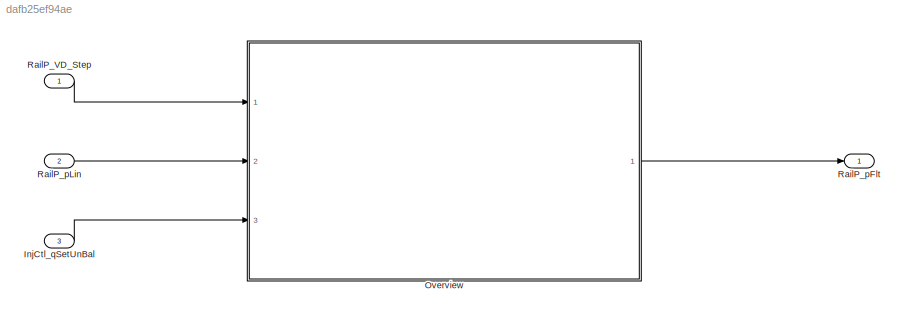
MODEL slx_dafb25ef94ae
KIND model
CONFIG AbsTol = auto
CONFIG EnableMultiTasking = off
CONFIG FixedStep = 0.001
CONFIG MaxStep = auto
CONFIG MinStep = auto
CONFIG RelTol = 1e-3
CONFIG SampleTimeConstraint = Unconstrained
CONFIG SolverName = FixedStepDiscrete
CONFIG StartTime = 0.0
CONFIG StopTime = Inf
BLOCK [Inport] InjCtl_qSetUnBal
  Description = Current injection quantity
  OutDataTypeStr = InjMass
  OutMax = 319
  OutMin = -319
  Port = 3
  PortDimensions = [1 1]
  Unit = mg/hub
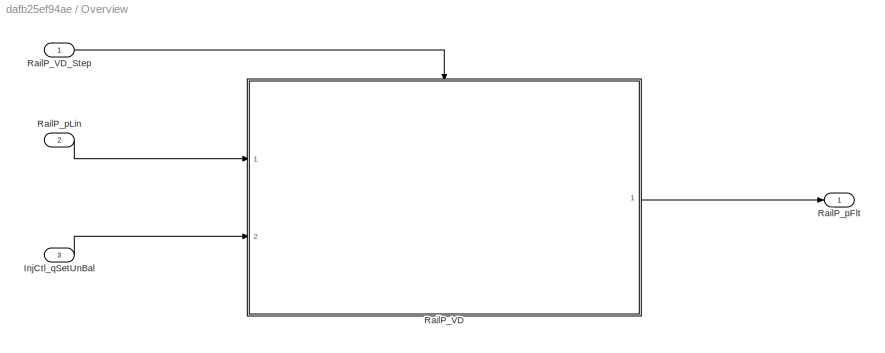
BLOCK [SubSystem] Overview
  Ports = [3, 1]
  RequestExecContextInheritance = off
BLOCK [Inport] Overview/InjCtl_qSetUnBal
  Port = 3
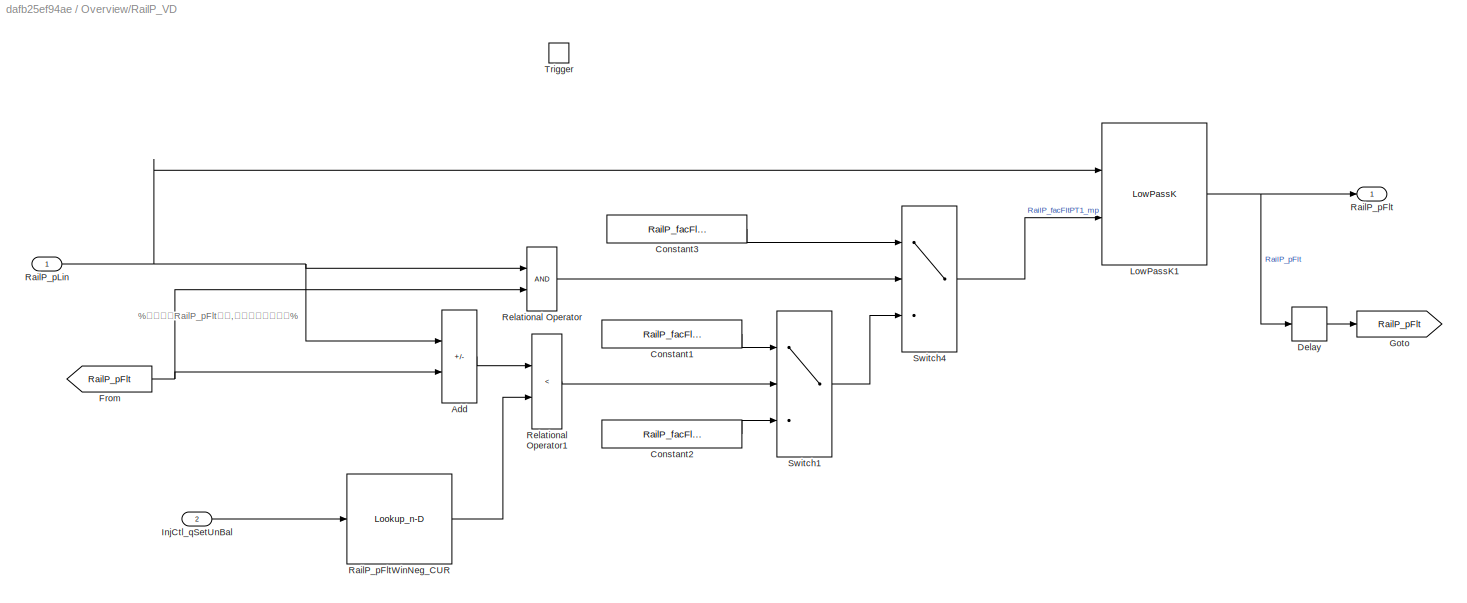
BLOCK [SubSystem] Overview/RailP_VD
  Ports = [2, 1, 0, 1]
  RequestExecContextInheritance = off
BLOCK [Sum] Overview/RailP_VD/Add
  IconShape = rectangular
  InputSameDT = on
  Inputs = -+
  OutDataTypeStr = Inherit: Inherit via back propagation
  Ports = [2, 1]
BLOCK [Constant] Overview/RailP_VD/Constant1
  Value = RailP_facFlt2PT1_C
BLOCK [Constant] Overview/RailP_VD/Constant2
  Value = RailP_facFlt3PT1_C
BLOCK [Constant] Overview/RailP_VD/Constant3
  Value = RailP_facFlt1PT1_C
BLOCK [Delay] Overview/RailP_VD/Delay
  DelayLength = 1
  InitialCondition = 0
  InputPortMap = u0
  Ports = [1, 1]
BLOCK [From] Overview/RailP_VD/From
  GotoTag = RailP_pFlt
BLOCK [Goto] Overview/RailP_VD/Goto
  GotoTag = RailP_pFlt
BLOCK [Inport] Overview/RailP_VD/InjCtl_qSetUnBal
  Port = 2
  Tag = mg/hub
BLOCK [Reference] Overview/RailP_VD/LowPassK1  REF=sllib/Transfer Functions/LowPassK  (lib defined in slx_2b0aa6d284ff)
  Ports = [2, 1]
  SourceBlock = sllib/Transfer Functions/LowPassK
  SourceProductName = sllib
  SourceType = LowPassK
BLOCK [Outport] Overview/RailP_VD/RailP_pFlt
  VectorParamsAs1DForOutWhenUnconnected = off
BLOCK [Lookup_n-D] Overview/RailP_VD/RailP_pFltWinNeg_CUR
  BeginIndexSearchUsingPreviousIndexResult = on
  BreakpointsForDimension1 = RailP_pFltWinNeg_CURX
  ExtrapMethod = Clip
  IndexSearchMethod = Linear search
  InputPortMap = u0
  InputSameDT = off
  InternalRulePriority = Speed
  NumberOfTableDimensions = 1
  OutDataTypeStr = Inherit: Inherit via back propagation
  Ports = [1, 1]
  SaturateOnIntegerOverflow = on
  Table = RailP_pFltWinNeg_CUR
  UseLastTableValue = on
  UseOneInputPortForAllInputData = on
BLOCK [Inport] Overview/RailP_VD/RailP_pLin
  Tag = bar
BLOCK [RelationalOperator] Overview/RailP_VD/Relational Operator
  OutDataTypeStr = boolean
  Ports = [2, 1]
BLOCK [RelationalOperator] Overview/RailP_VD/Relational Operator1
  Operator = <
  OutDataTypeStr = boolean
  Ports = [2, 1]
BLOCK [Switch] Overview/RailP_VD/Switch1
  Criteria = u2 ~= 0
  SaturateOnIntegerOverflow = off
BLOCK [Switch] Overview/RailP_VD/Switch4
  Criteria = u2 ~= 0
  SaturateOnIntegerOverflow = off
BLOCK [TriggerPort] Overview/RailP_VD/Trigger
  PortDimensions = 1
  Ports = []
  StatesWhenEnabling = held
  TriggerType = function-call
  VariantControl = Variant
BLOCK [Inport] Overview/RailP_VD_Step
BLOCK [Outport] Overview/RailP_pFlt
  VectorParamsAs1DForOutWhenUnconnected = off
BLOCK [Inport] Overview/RailP_pLin
  Port = 2
BLOCK [Inport] RailP_VD_Step
  OutputFunctionCall = on
BLOCK [Outport] RailP_pFlt
  Description = Maximum rail pressure of the last 10 sampling cycle
  OutDataTypeStr = Press_bar1
  OutMax = 2000
  OutMin = 0
  PortDimensions = [1 1]
  Unit = bar
BLOCK [Inport] RailP_pLin
  Description = Fuel pressure
  OutDataTypeStr = Press_bar1
  OutMax = 2000
  OutMin = 0
  Port = 2
  PortDimensions = [1 1]
  Unit = bar
ANNOTATION Overview/RailP_VD: %不能设置RailP_pFlt标签,会与延时前的冲突%
LINE InjCtl_qSetUnBal:1 -> Overview:3
LINE Overview/InjCtl_qSetUnBal:1 -> Overview/RailP_VD:2
LINE Overview/RailP_VD/Add:1 -> Overview/RailP_VD/Relational Operator1:1
LINE Overview/RailP_VD/Constant1:1 -> Overview/RailP_VD/Switch1:1
LINE Overview/RailP_VD/Constant2:1 -> Overview/RailP_VD/Switch1:3
LINE Overview/RailP_VD/Constant3:1 -> Overview/RailP_VD/Switch4:1
LINE Overview/RailP_VD/Delay:1 -> Overview/RailP_VD/Goto:1
NET Overview/RailP_VD/From:1 -> Overview/RailP_VD/Add:2, Overview/RailP_VD/Relational Operator:2
LINE Overview/RailP_VD/InjCtl_qSetUnBal:1 -> Overview/RailP_VD/RailP_pFltWinNeg_CUR:1
NET Overview/RailP_VD/LowPassK1:1 -> Overview/RailP_VD/Delay:1, Overview/RailP_VD/RailP_pFlt:1
LINE Overview/RailP_VD/RailP_pFltWinNeg_CUR:1 -> Overview/RailP_VD/Relational Operator1:2
NET Overview/RailP_VD/RailP_pLin:1 -> Overview/RailP_VD/Add:1, Overview/RailP_VD/LowPassK1:1, Overview/RailP_VD/Relational Operator:1
LINE Overview/RailP_VD/Relational Operator1:1 -> Overview/RailP_VD/Switch1:2
LINE Overview/RailP_VD/Relational Operator:1 -> Overview/RailP_VD/Switch4:2
LINE Overview/RailP_VD/Switch1:1 -> Overview/RailP_VD/Switch4:3
LINE Overview/RailP_VD/Switch4:1 -> Overview/RailP_VD/LowPassK1:2
LINE Overview/RailP_VD:1 -> Overview/RailP_pFlt:1
LINE Overview/RailP_VD_Step:1 -> Overview/RailP_VD:trigger
LINE Overview/RailP_pLin:1 -> Overview/RailP_VD:1
LINE Overview:1 -> RailP_pFlt:1
LINE RailP_VD_Step:1 -> Overview:1
LINE RailP_pLin:1 -> Overview:2
note: NET lines group one-source signal fan-out (src -> all destinations, sorted); 1:1 wires keep LINE
